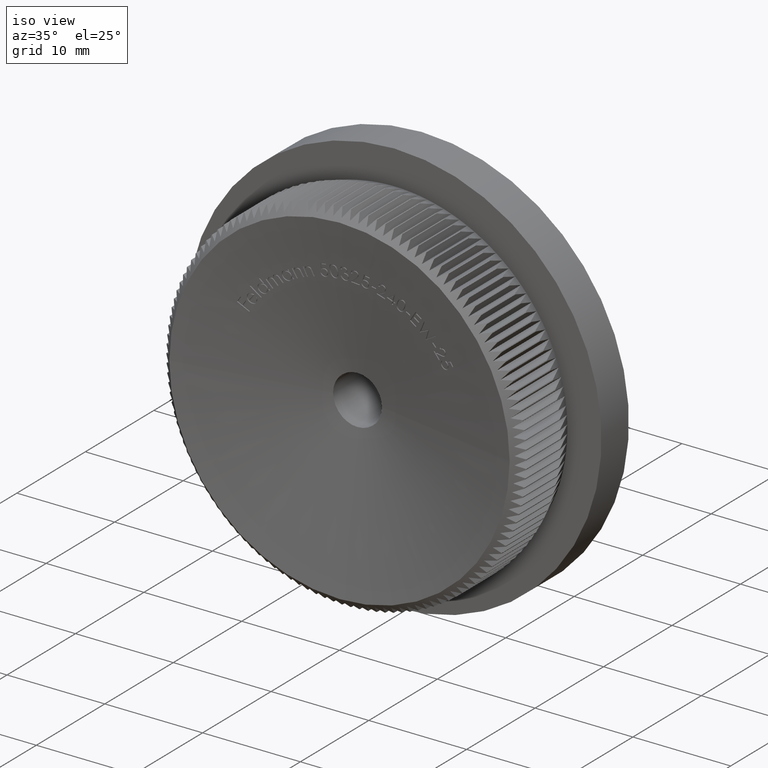
[diagram: clean part render]
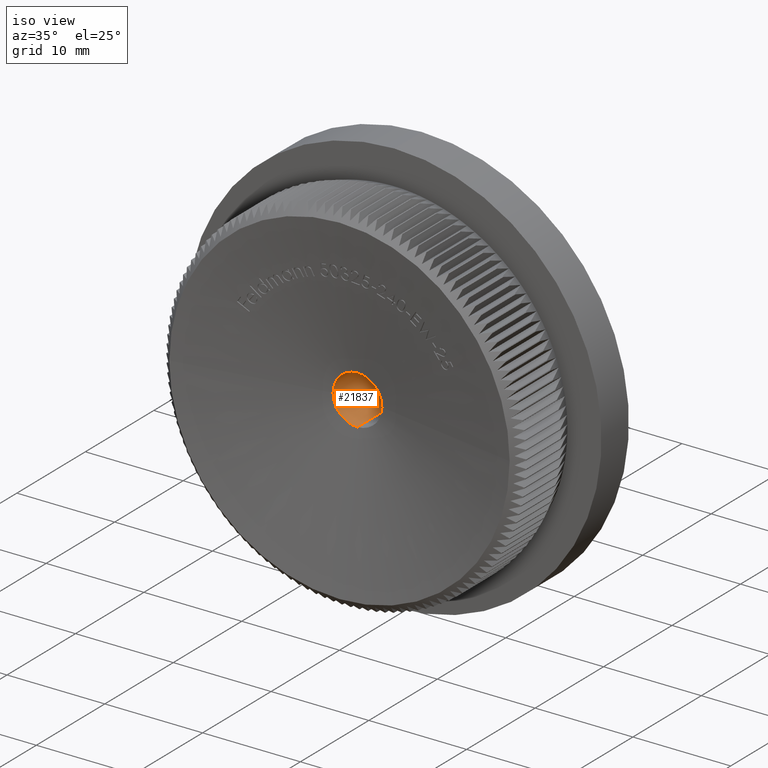
[diagram: same view with one face highlighted and labeled with its STEP entity id]
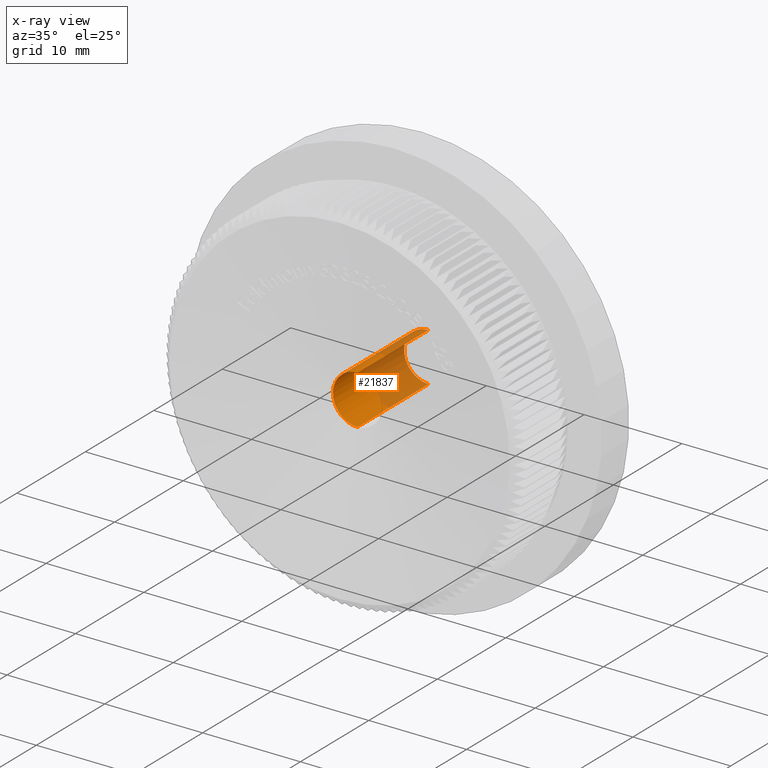
[diagram: x-ray of the same camera — body ghosted, the highlighted face saturated]
A machine part, iso view. The second image highlights one B-rep face of the part: STEP entity #21837.
The next image is the same camera in x-ray: the body ghosted, the highlighted face saturated — about 50% of this face is hidden behind the body in this view.
In plain terms, the highlighted cylindrical surface (edge-blend (fillet) strip) has radius 2.5 mm, axis along (-0, 1, -0).
Its self-contained STEP definition (entity closure, byte-faithful):
#236 = VECTOR ( 'NONE', #14095, 1000.000000000000000 ) ;
#317 = EDGE_CURVE ( 'NONE', #9336, #24420, #26044, .T. ) ;
#479 = EDGE_CURVE ( 'NONE', #2257, #24420, #6142, .T. ) ;
#965 = DIRECTION ( 'NONE',  ( 1.000000000000000000, 0.0000000000000000000, 0.0000000000000000000 ) ) ;
#1516 = DIRECTION ( 'NONE',  ( 1.000000000000000000, 0.0000000000000000000, 0.0000000000000000000 ) ) ;
#1633 = AXIS2_PLACEMENT_3D ( 'NONE', #18263, #17486, #28502 ) ;
#2257 = VERTEX_POINT ( 'NONE', #10621 ) ;
#3790 = ORIENTED_EDGE ( 'NONE', *, *, #23561, .T. ) ;
#3903 = CARTESIAN_POINT ( 'NONE',  ( 3.146053012283196100E-017, 2.627272012556019400, 0.0000000000000000000 ) ) ;
#4409 = CIRCLE ( 'NONE', #8069, 2.500000000000000000 ) ;
#4489 = EDGE_CURVE ( 'NONE', #29960, #2257, #19367, .T. ) ;
#5293 = ORIENTED_EDGE ( 'NONE', *, *, #30610, .F. ) ;
#6142 = LINE ( 'NONE', #28552, #236 ) ;
#7121 = LINE ( 'NONE', #13875, #12658 ) ;
#8069 = AXIS2_PLACEMENT_3D ( 'NONE', #3903, #8215, #1516 ) ;
#8215 = DIRECTION ( 'NONE',  ( 1.197459949806440200E-017, 1.000000000000000000, 0.0000000000000000000 ) ) ;
#8266 = CARTESIAN_POINT ( 'NONE',  ( 3.146053012283196100E-017, 2.627272012556019400, 0.0000000000000000000 ) ) ;
#9336 = VERTEX_POINT ( 'NONE', #9985 ) ;
#9859 = VERTEX_POINT ( 'NONE', #27147 ) ;
#9985 = CARTESIAN_POINT ( 'NONE',  ( 3.061616997868382600E-016, 13.00000000000000000, -2.500000000000000000 ) ) ;
#10332 = ORIENTED_EDGE ( 'NONE', *, *, #4489, .F. ) ;
#10621 = CARTESIAN_POINT ( 'NONE',  ( 0.0000000000000000000, 2.627272012556019400, 2.500000000000000000 ) ) ;
#12658 = VECTOR ( 'NONE', #21607, 1000.000000000000000 ) ;
#12832 = ORIENTED_EDGE ( 'NONE', *, *, #479, .F. ) ;
#13875 = CARTESIAN_POINT ( 'NONE',  ( 3.061616997868382600E-016, 0.0000000000000000000, -2.500000000000000000 ) ) ;
#14095 = DIRECTION ( 'NONE',  ( -0.0000000000000000000, 1.000000000000000000, -0.0000000000000000000 ) ) ;
#16629 = DIRECTION ( 'NONE',  ( 0.0000000000000000000, 1.000000000000000000, 0.0000000000000000000 ) ) ;
#17486 = DIRECTION ( 'NONE',  ( -0.0000000000000000000, 1.000000000000000000, -0.0000000000000000000 ) ) ;
#17961 = CARTESIAN_POINT ( 'NONE',  ( -2.500000000000000000, 2.627272012556019400, 1.218523565151616000E-015 ) ) ;
#18263 = CARTESIAN_POINT ( 'NONE',  ( 0.0000000000000000000, 0.0000000000000000000, 0.0000000000000000000 ) ) ;
#18502 = CARTESIAN_POINT ( 'NONE',  ( 0.0000000000000000000, 13.00000000000000000, 0.0000000000000000000 ) ) ;
#19016 = DIRECTION ( 'NONE',  ( 0.0000000000000000000, 0.0000000000000000000, 1.000000000000000000 ) ) ;
#19367 = CIRCLE ( 'NONE', #30057, 2.500000000000000000 ) ;
#20464 = FACE_OUTER_BOUND ( 'NONE', #23557, .T. ) ;
#21607 = DIRECTION ( 'NONE',  ( -0.0000000000000000000, 1.000000000000000000, -0.0000000000000000000 ) ) ;
#21837 = ADVANCED_FACE ( 'NONE', ( #20464 ), #26724, .F. ) ;
#22261 = AXIS2_PLACEMENT_3D ( 'NONE', #18502, #16629, #19016 ) ;
#23557 = EDGE_LOOP ( 'NONE', ( #5293, #3790, #29646, #12832, #10332 ) ) ;
#23561 = EDGE_CURVE ( 'NONE', #9859, #9336, #7121, .T. ) ;
#24420 = VERTEX_POINT ( 'NONE', #29743 ) ;
#26044 = CIRCLE ( 'NONE', #22261, 2.500000000000000000 ) ;
#26724 = CYLINDRICAL_SURFACE ( 'NONE', #1633, 2.500000000000000000 ) ;
#26928 = DIRECTION ( 'NONE',  ( 1.197459949806440200E-017, 1.000000000000000000, 0.0000000000000000000 ) ) ;
#27147 = CARTESIAN_POINT ( 'NONE',  ( 3.061616997868382600E-016, 2.627272012556019400, -2.500000000000000000 ) ) ;
#28502 = DIRECTION ( 'NONE',  ( 0.0000000000000000000, 0.0000000000000000000, 1.000000000000000000 ) ) ;
#28552 = CARTESIAN_POINT ( 'NONE',  ( 0.0000000000000000000, 0.0000000000000000000, 2.500000000000000000 ) ) ;
#29646 = ORIENTED_EDGE ( 'NONE', *, *, #317, .T. ) ;
#29743 = CARTESIAN_POINT ( 'NONE',  ( 0.0000000000000000000, 13.00000000000000000, 2.500000000000000000 ) ) ;
#29960 = VERTEX_POINT ( 'NONE', #17961 ) ;
#30057 = AXIS2_PLACEMENT_3D ( 'NONE', #8266, #26928, #965 ) ;
#30610 = EDGE_CURVE ( 'NONE', #9859, #29960, #4409, .T. ) ;